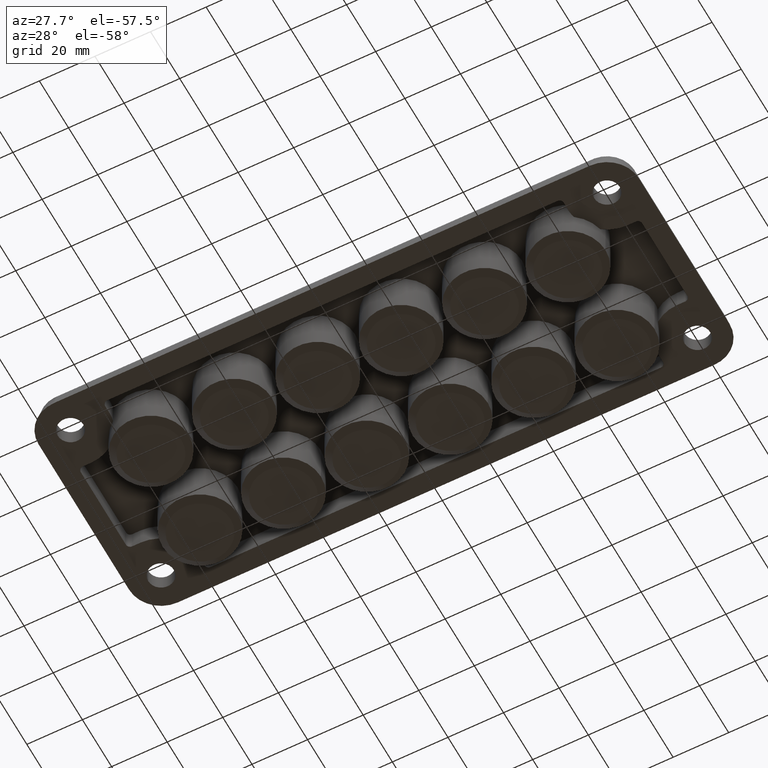
[diagram: clean part render]
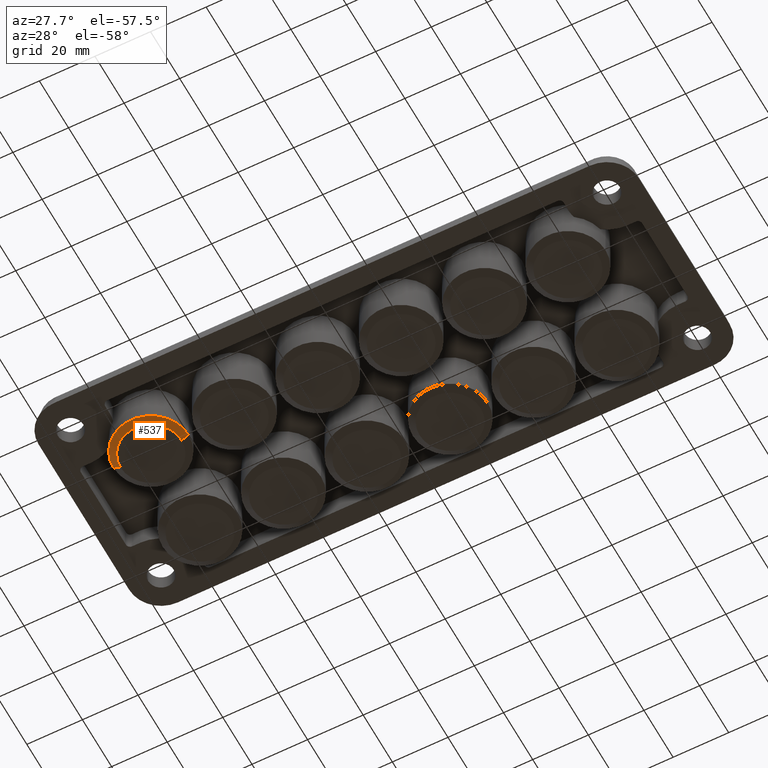
[diagram: same view with one face highlighted and labeled with its STEP entity id]
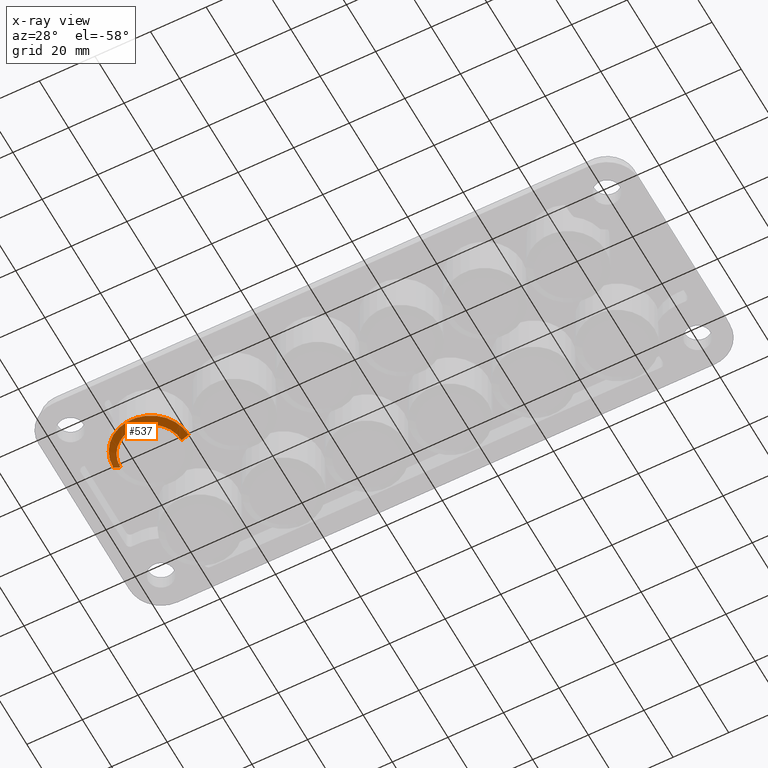
[diagram: x-ray of the same camera — body ghosted, the highlighted face saturated]
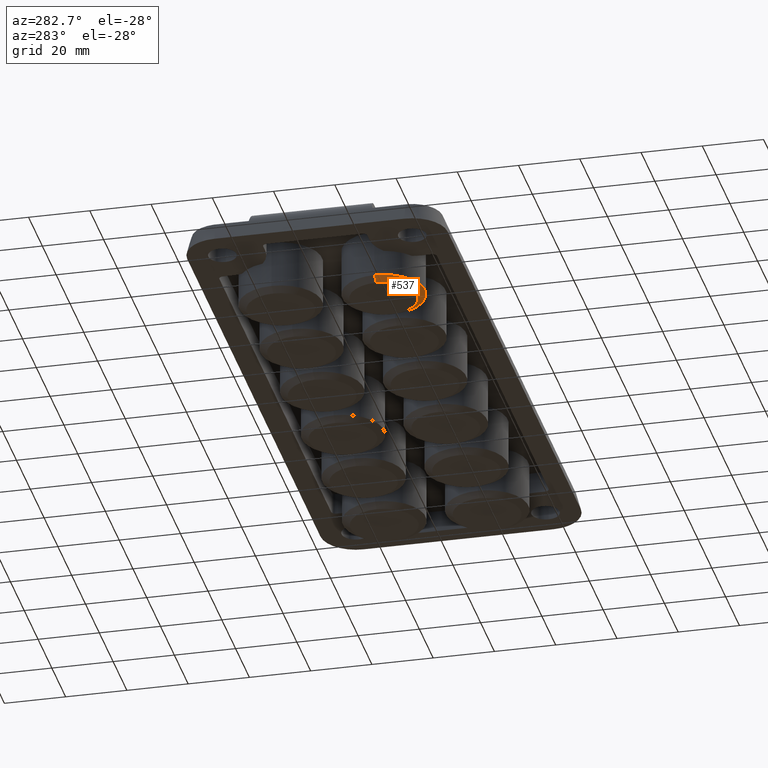
[diagram: same view with one face highlighted and labeled with its STEP entity id]
A machine part, auxiliary view. The second image highlights one B-rep face of the part: STEP entity #537.
The next image is the same camera in x-ray: the body ghosted, the highlighted face saturated — about 0% of this face is hidden behind the body in this view.
A second angle (auxiliary view) of the same face is appended — the face is thin or edge-on in the first view.
In plain terms, the highlighted conical surface has half-angle 60 deg.
Its self-contained STEP definition (entity closure, byte-faithful):
#145 = VERTEX_POINT ( 'NONE', #3728 ) ;
#537 = ADVANCED_FACE ( 'NONE', ( #1620 ), #2841, .T. ) ;
#659 = AXIS2_PLACEMENT_3D ( 'NONE', #1784, #1052, #4024 ) ;
#752 = DIRECTION ( 'NONE',  ( 0.8660254037844400400, 0.0000000000000000000, 0.4999999999999975600 ) ) ;
#1052 = DIRECTION ( 'NONE',  ( -0.0000000000000000000, -0.0000000000000000000, -1.000000000000000000 ) ) ;
#1108 = DIRECTION ( 'NONE',  ( 1.000000000000000000, 0.0000000000000000000, 0.0000000000000000000 ) ) ;
#1620 = FACE_OUTER_BOUND ( 'NONE', #1687, .T. ) ;
#1640 = VERTEX_POINT ( 'NONE', #2246 ) ;
#1687 = EDGE_LOOP ( 'NONE', ( #3012, #2204, #2499, #2945 ) ) ;
#1731 = DIRECTION ( 'NONE',  ( -0.0000000000000000000, -0.0000000000000000000, 1.000000000000000000 ) ) ;
#1756 = AXIS2_PLACEMENT_3D ( 'NONE', #3261, #1731, #2861 ) ;
#1784 = CARTESIAN_POINT ( 'NONE',  ( -75.00000000000000000, -16.80000000000001100, -10.00000000000000000 ) ) ;
#1893 = DIRECTION ( 'NONE',  ( -0.0000000000000000000, -0.0000000000000000000, 1.000000000000000000 ) ) ;
#2054 = DIRECTION ( 'NONE',  ( -0.8660254037844400400, 1.060575238724908500E-016, 0.4999999999999975600 ) ) ;
#2114 = CIRCLE ( 'NONE', #1756, 13.49999999999999800 ) ;
#2195 = CARTESIAN_POINT ( 'NONE',  ( -61.50000000000000000, -16.80000000000001100, -8.556624327025934600 ) ) ;
#2204 = ORIENTED_EDGE ( 'NONE', *, *, #2603, .F. ) ;
#2246 = CARTESIAN_POINT ( 'NONE',  ( -88.50000000000000000, -16.80000000000001100, -8.556624327025934600 ) ) ;
#2499 = ORIENTED_EDGE ( 'NONE', *, *, #4488, .T. ) ;
#2603 = EDGE_CURVE ( 'NONE', #3118, #145, #4068, .T. ) ;
#2682 = VERTEX_POINT ( 'NONE', #2195 ) ;
#2841 = CONICAL_SURFACE ( 'NONE', #4593, 13.49999999999999800, 1.047197551196600500 ) ;
#2861 = DIRECTION ( 'NONE',  ( 1.000000000000000000, 0.0000000000000000000, 0.0000000000000000000 ) ) ;
#2931 = EDGE_CURVE ( 'NONE', #145, #1640, #3276, .T. ) ;
#2945 = ORIENTED_EDGE ( 'NONE', *, *, #4861, .F. ) ;
#3012 = ORIENTED_EDGE ( 'NONE', *, *, #2931, .F. ) ;
#3099 = VECTOR ( 'NONE', #752, 1000.000000000000200 ) ;
#3118 = VERTEX_POINT ( 'NONE', #3729 ) ;
#3150 = CARTESIAN_POINT ( 'NONE',  ( -88.50000000000000000, -16.80000000000001100, -8.556624327025934600 ) ) ;
#3261 = CARTESIAN_POINT ( 'NONE',  ( -75.00000000000000000, -16.80000000000001100, -8.556624327025934600 ) ) ;
#3276 = LINE ( 'NONE', #3150, #4613 ) ;
#3363 = CARTESIAN_POINT ( 'NONE',  ( -75.00000000000000000, -16.80000000000001100, -8.556624327025934600 ) ) ;
#3394 = CARTESIAN_POINT ( 'NONE',  ( -61.50000000000000000, -16.80000000000001100, -8.556624327025934600 ) ) ;
#3728 = CARTESIAN_POINT ( 'NONE',  ( -85.99999999999998600, -16.80000000000001100, -10.00000000000000000 ) ) ;
#3729 = CARTESIAN_POINT ( 'NONE',  ( -64.00000000000001400, -16.80000000000001100, -10.00000000000000000 ) ) ;
#4024 = DIRECTION ( 'NONE',  ( 1.000000000000000000, 0.0000000000000000000, 0.0000000000000000000 ) ) ;
#4068 = CIRCLE ( 'NONE', #659, 10.99999999999998200 ) ;
#4488 = EDGE_CURVE ( 'NONE', #3118, #2682, #4671, .T. ) ;
#4593 = AXIS2_PLACEMENT_3D ( 'NONE', #3363, #1893, #1108 ) ;
#4613 = VECTOR ( 'NONE', #2054, 1000.000000000000200 ) ;
#4671 = LINE ( 'NONE', #3394, #3099 ) ;
#4861 = EDGE_CURVE ( 'NONE', #1640, #2682, #2114, .T. ) ;